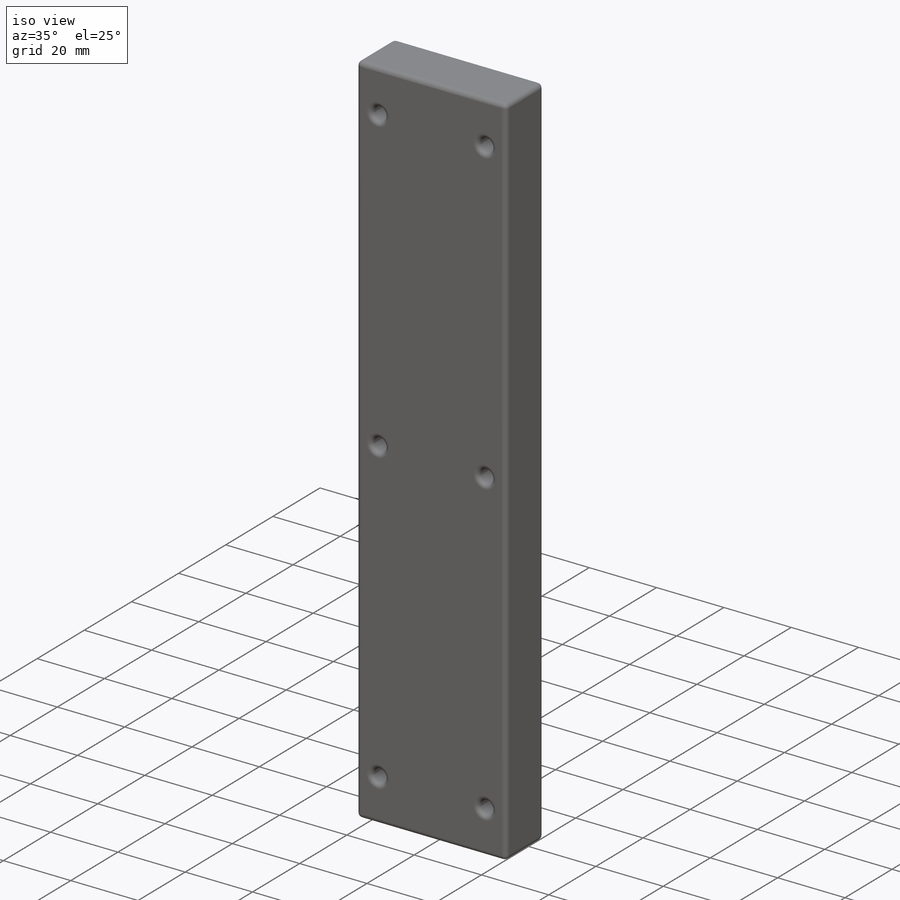
[diagram: iso view]
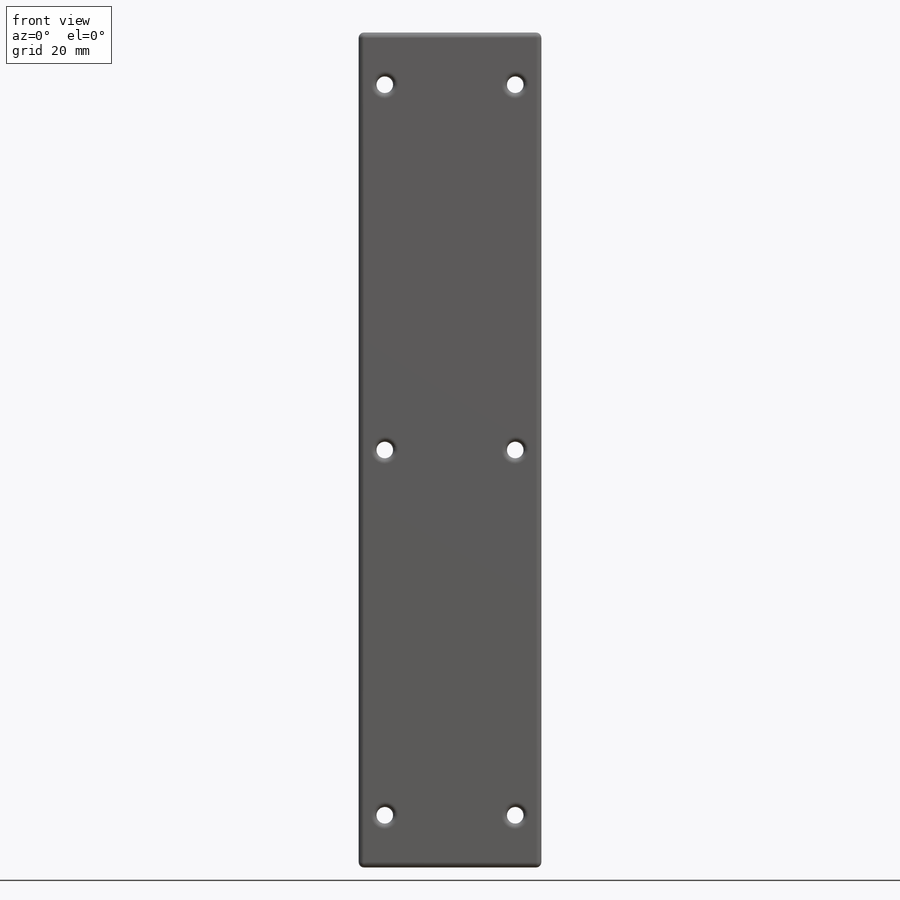
[diagram: front view]
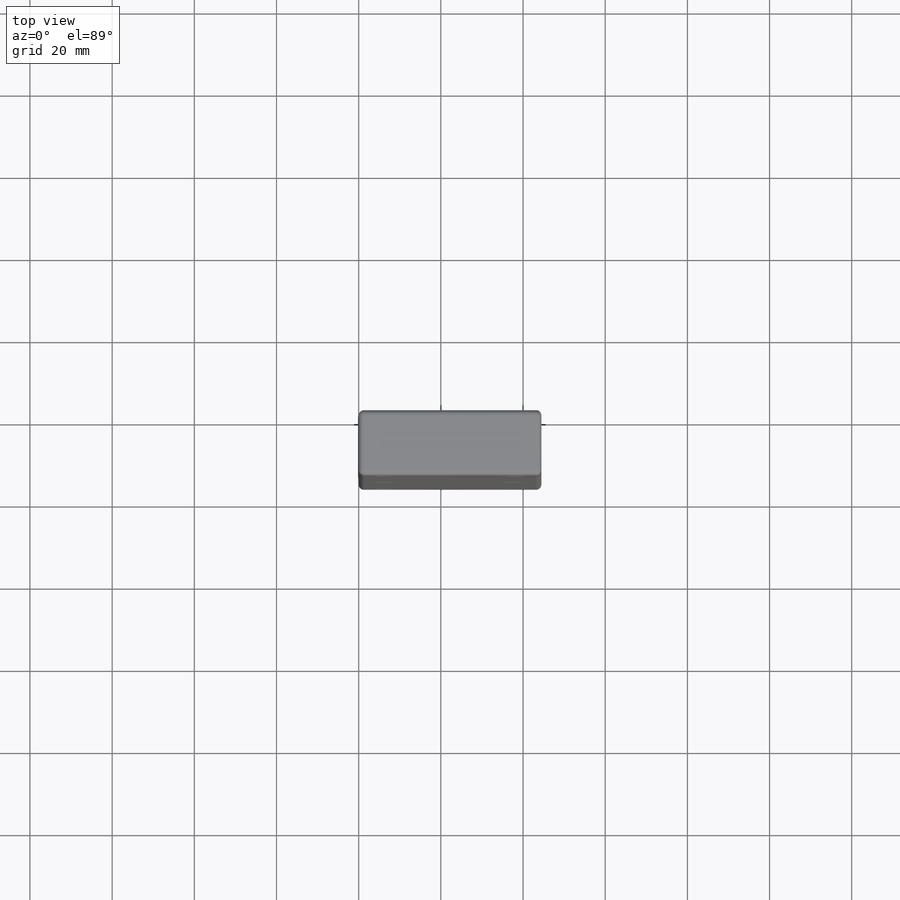
[diagram: top view]
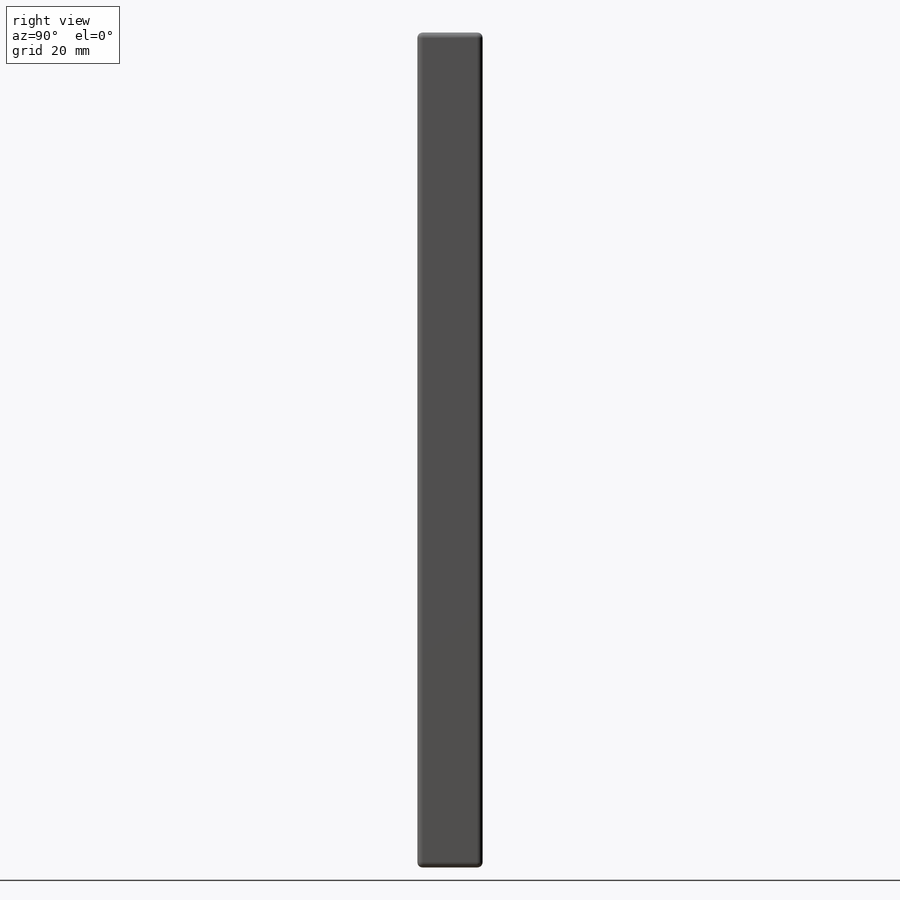
[diagram: right view]
SOLIDWORKS PART (.sldprt)
format: sldprt  version: not decoded by parser v0  size: 297,472 bytes
history: native  units: mm
features: sketch x3, cut_extrude x2, material x1, extrude x1, fillet x1 (+15 scaffold rows collapsed)
feature tree (23):
  scaffold x15  (default folders/planes/origin — collapsed)
  material  "Material <not specified>"
  sketch  "Sketch1"  dims[D1=44.45mm D2=203.2mm]
  extrude  "Boss-Extrude1"  Depth=15.875mm
  sketch  "Sketch2"  dims[c1.D1=31.75mm c1.D2=31.75mm c2.D2=45.0deg c2.D3=31.75mm c3.D3=45.0deg c3.D4=7.9375mm c3.D5=63.5mm c3.D6=0.381mm c3.D2=0.381mm]
  cut_extrude  "Cut-Extrude1"  Depth=38.1mm
  sketch  "Sketch3"  dims[D5=4.0386mm D1=31.75mm D2=6.35mm D3=88.9mm D4=88.9mm]
  cut_extrude  "Cut-Extrude2"  [1 undecoded]
  fillet  "Fillet1"  Radius=1.27mm
decode coverage: 6 of 7 modeling features carry decoded parameters
note: 1 parameter value undecoded
note: suppression state not decoded; provenance and decode notes live in map.json
